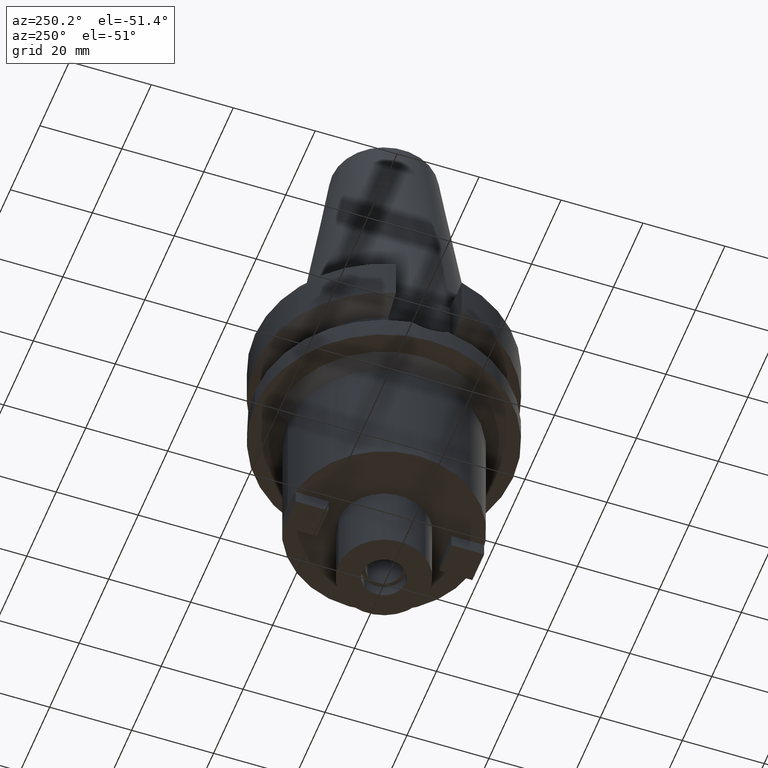
[diagram: clean part render]
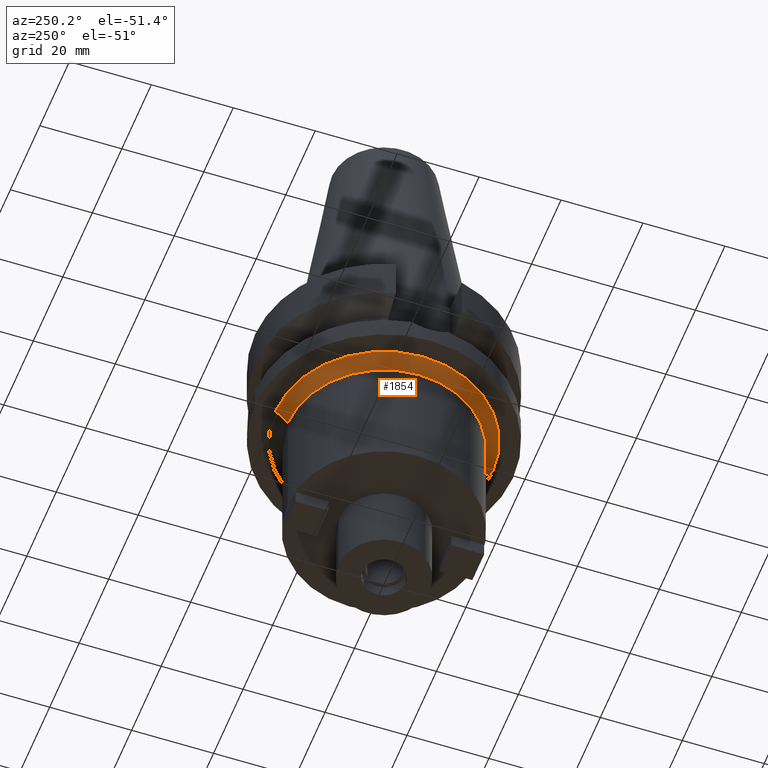
[diagram: same view with one face highlighted and labeled with its STEP entity id]
A machine part, auxiliary view. The second image highlights one B-rep face of the part: STEP entity #1854.
In plain terms, the highlighted conical surface has half-angle 45 deg.
Its self-contained STEP definition (entity closure, byte-faithful):
#644=CARTESIAN_POINT('',(0.E0,0.E0,-2.7E1));
#645=DIRECTION('',(0.E0,0.E0,-1.E0));
#646=DIRECTION('',(0.E0,-1.E0,0.E0));
#647=AXIS2_PLACEMENT_3D('',#644,#645,#646);
#660=DIRECTION('',(0.E0,7.071067811865E-1,-7.071067811865E-1));
#661=VECTOR('',#660,4.242640687119E0);
#662=CARTESIAN_POINT('',(0.E0,-2.65E1,-2.7E1));
#663=LINE('',#662,#661);
#667=CARTESIAN_POINT('',(0.E0,0.E0,-3.E1));
#668=DIRECTION('',(0.E0,0.E0,-1.E0));
#669=DIRECTION('',(0.E0,-1.E0,0.E0));
#670=AXIS2_PLACEMENT_3D('',#667,#668,#669);
#675=DIRECTION('',(0.E0,-7.071067811865E-1,-7.071067811865E-1));
#676=VECTOR('',#675,4.242640687119E0);
#677=CARTESIAN_POINT('',(0.E0,2.65E1,-2.7E1));
#678=LINE('',#677,#676);
#1288=CARTESIAN_POINT('',(0.E0,2.35E1,-3.E1));
#1289=VERTEX_POINT('',#1288);
#1290=CARTESIAN_POINT('',(0.E0,-2.35E1,-3.E1));
#1291=VERTEX_POINT('',#1290);
#1292=CARTESIAN_POINT('',(0.E0,2.65E1,-2.7E1));
#1293=VERTEX_POINT('',#1292);
#1294=CARTESIAN_POINT('',(0.E0,-2.65E1,-2.7E1));
#1295=VERTEX_POINT('',#1294);
#1840=CARTESIAN_POINT('',(0.E0,0.E0,-2.85E1));
#1841=DIRECTION('',(0.E0,0.E0,1.E0));
#1842=DIRECTION('',(0.E0,1.E0,0.E0));
#1843=AXIS2_PLACEMENT_3D('',#1840,#1841,#1842);
#1844=CONICAL_SURFACE('',#1843,2.5E1,4.5E1);
#1846=ORIENTED_EDGE('',*,*,#1845,.F.);
#1847=ORIENTED_EDGE('',*,*,#1833,.F.);
#1849=ORIENTED_EDGE('',*,*,#1848,.T.);
#1851=ORIENTED_EDGE('',*,*,#1850,.T.);
#1852=EDGE_LOOP('',(#1846,#1847,#1849,#1851));
#1853=FACE_OUTER_BOUND('',#1852,.F.);
#648=CIRCLE('',#647,2.65E1);
#671=CIRCLE('',#670,2.35E1);
#1833=EDGE_CURVE('',#1295,#1293,#648,.T.);
#1845=EDGE_CURVE('',#1293,#1289,#678,.T.);
#1848=EDGE_CURVE('',#1295,#1291,#663,.T.);
#1850=EDGE_CURVE('',#1291,#1289,#671,.T.);
#1854=ADVANCED_FACE('',(#1853),#1844,.T.);